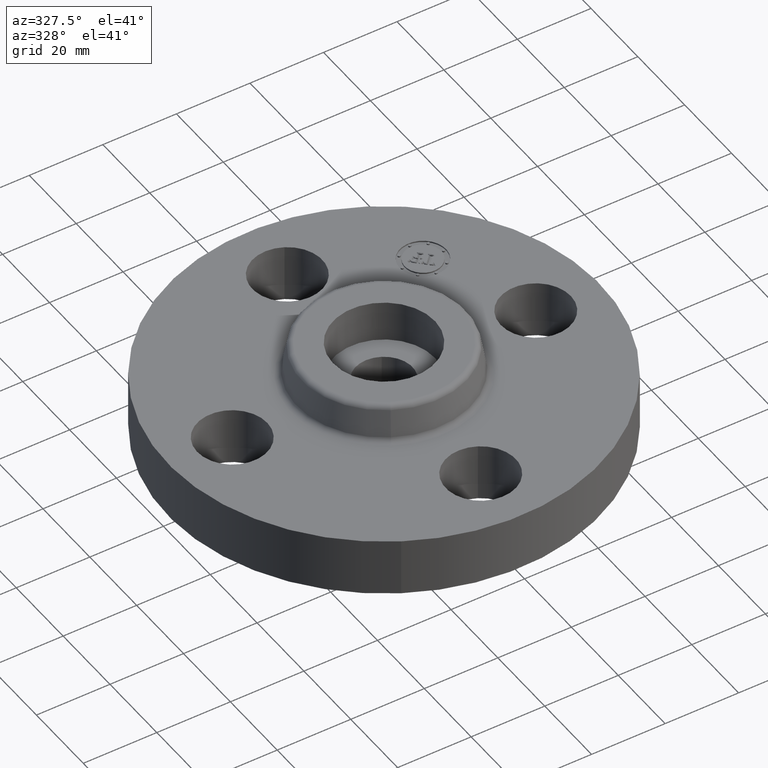
[diagram: clean part render]
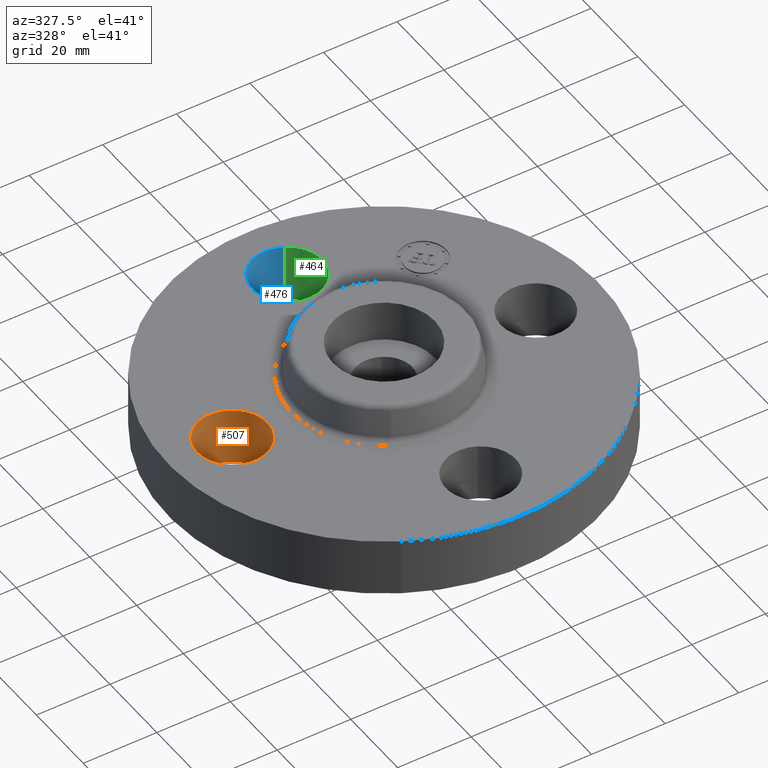
[diagram: same view with three faces highlighted in distinct colors, each labeled with its STEP entity id]
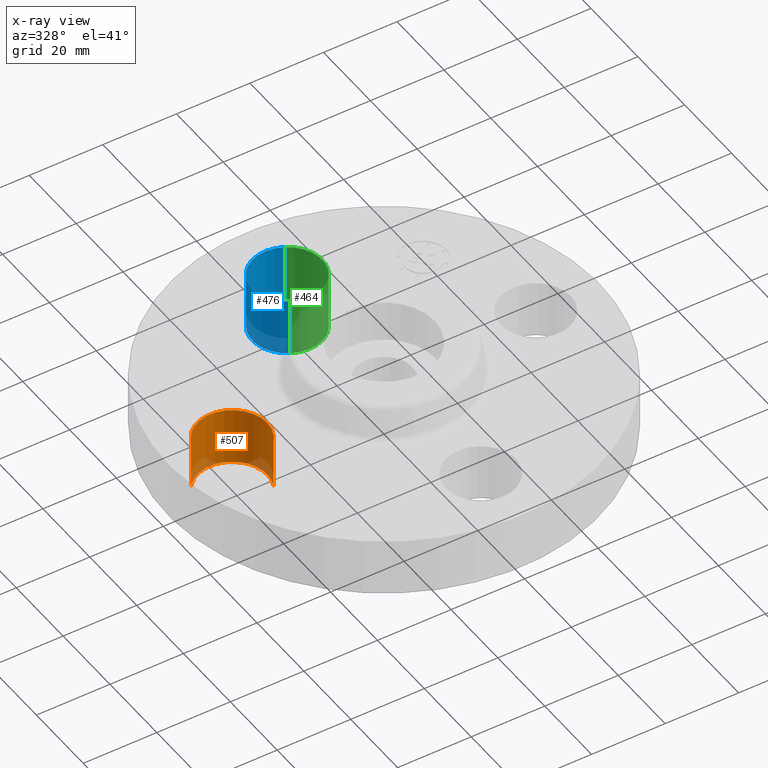
[diagram: x-ray of the same camera — body ghosted, the three highlighted faces saturated]
A machine part, auxiliary view with three faces highlighted in distinct colors.
The next image is the same camera in x-ray (body ghosted, the three faces saturated) — at least one of them is partly hidden behind the body in this view.
Their STEP definitions:

[orange] entity #507 — the highlighted cylindrical surface (partial cylindrical patch) has radius 9.525 mm, axis along (-0, 0, -1).
#194=AXIS2_PLACEMENT_3D('Circle Axis2P3D',#192,#193,$) ;
#480=AXIS2_PLACEMENT_3D('Cylinder Axis2P3D',#477,#478,#479) ;
#498=AXIS2_PLACEMENT_3D('Circle Axis2P3D',#496,#497,$) ;
#187=CARTESIAN_POINT('Vertex',(-1.2959065393,-0.179784576977,0.)) ;
#189=CARTESIAN_POINT('Vertex',(-1.95409346072,0.179784576977,0.)) ;
#192=CARTESIAN_POINT('Axis2P3D Location',(-1.62500000001,-2.09805925913E-016,0.)) ;
#477=CARTESIAN_POINT('Axis2P3D Location',(-1.62500000001,-1.99005104862E-016,0.616062992128)) ;
#482=CARTESIAN_POINT('Line Origine',(-1.95409346072,0.179784576977,0.310000000001)) ;
#486=CARTESIAN_POINT('Vertex',(-1.95409346072,0.179784576977,0.620000000002)) ;
#489=CARTESIAN_POINT('Line Origine',(-1.2959065393,-0.179784576977,0.310000000001)) ;
#493=CARTESIAN_POINT('Vertex',(-1.2959065393,-0.179784576977,0.620000000002)) ;
#496=CARTESIAN_POINT('Axis2P3D Location',(-1.62500000001,-1.99005104862E-016,0.620000000002)) ;
#193=DIRECTION('Axis2P3D Direction',(0.,0.,-0.0393700787402)) ;
#478=DIRECTION('Axis2P3D Direction',(-0.,0.,-0.0393700787402)) ;
#479=DIRECTION('Axis2P3D XDirection',(0.0345504945626,-0.0188750212049,-0.)) ;
#483=DIRECTION('Vector Direction',(0.,0.,-0.0393700787402)) ;
#490=DIRECTION('Vector Direction',(0.,0.,-0.0393700787402)) ;
#497=DIRECTION('Axis2P3D Direction',(-0.,0.,-0.0393700787402)) ;
#484=VECTOR('Line Direction',#483,0.0393700787402) ;
#491=VECTOR('Line Direction',#490,0.0393700787402) ;
#502=ORIENTED_EDGE('',*,*,#488,.F.) ;
#503=ORIENTED_EDGE('',*,*,#196,.T.) ;
#504=ORIENTED_EDGE('',*,*,#495,.T.) ;
#505=ORIENTED_EDGE('',*,*,#500,.F.) ;
#507=ADVANCED_FACE('PartBody',(#506),#481,.F.) ;
#195=CIRCLE('generated circle',#194,0.375000000002) ;
#499=CIRCLE('generated circle',#498,0.375000000002) ;
#481=CYLINDRICAL_SURFACE('generated cylinder',#480,0.375000000002) ;
#196=EDGE_CURVE('',#190,#188,#195,.T.) ;
#488=EDGE_CURVE('',#190,#487,#485,.F.) ;
#495=EDGE_CURVE('',#188,#494,#492,.F.) ;
#500=EDGE_CURVE('',#487,#494,#499,.T.) ;
#501=EDGE_LOOP('',(#502,#503,#504,#505)) ;
#506=FACE_OUTER_BOUND('',#501,.T.) ;
#485=LINE('Line',#482,#484) ;
#492=LINE('Line',#489,#491) ;
#188=VERTEX_POINT('',#187) ;
#190=VERTEX_POINT('',#189) ;
#487=VERTEX_POINT('',#486) ;
#494=VERTEX_POINT('',#493) ;

[blue] entity #476 — the highlighted cylindrical surface (partial cylindrical patch) has radius 9.525 mm, axis along (0, 0, -1).
#203=AXIS2_PLACEMENT_3D('Circle Axis2P3D',#201,#202,$) ;
#437=AXIS2_PLACEMENT_3D('Cylinder Axis2P3D',#434,#435,#436) ;
#467=AXIS2_PLACEMENT_3D('Circle Axis2P3D',#465,#466,$) ;
#201=CARTESIAN_POINT('Axis2P3D Location',(-3.1470888887E-016,1.62500000001,0.)) ;
#205=CARTESIAN_POINT('Vertex',(-0.179784576977,1.2959065393,0.)) ;
#207=CARTESIAN_POINT('Vertex',(0.179784576977,1.95409346072,0.)) ;
#434=CARTESIAN_POINT('Axis2P3D Location',(-2.98507657293E-016,1.62500000001,0.616062992128)) ;
#439=CARTESIAN_POINT('Line Origine',(0.179784576977,1.95409346072,0.310000000001)) ;
#443=CARTESIAN_POINT('Vertex',(0.179784576977,1.95409346072,0.620000000002)) ;
#446=CARTESIAN_POINT('Line Origine',(-0.179784576977,1.2959065393,0.310000000001)) ;
#450=CARTESIAN_POINT('Vertex',(-0.179784576977,1.2959065393,0.620000000002)) ;
#465=CARTESIAN_POINT('Axis2P3D Location',(-2.98507657293E-016,1.62500000001,0.620000000002)) ;
#202=DIRECTION('Axis2P3D Direction',(0.,0.,-0.0393700787402)) ;
#435=DIRECTION('Axis2P3D Direction',(0.,0.,-0.0393700787402)) ;
#436=DIRECTION('Axis2P3D XDirection',(-0.0188750212049,-0.0345504945626,-0.)) ;
#440=DIRECTION('Vector Direction',(0.,0.,-0.0393700787402)) ;
#447=DIRECTION('Vector Direction',(0.,0.,-0.0393700787402)) ;
#466=DIRECTION('Axis2P3D Direction',(0.,0.,-0.0393700787402)) ;
#441=VECTOR('Line Direction',#440,0.0393700787402) ;
#448=VECTOR('Line Direction',#447,0.0393700787402) ;
#471=ORIENTED_EDGE('',*,*,#452,.F.) ;
#472=ORIENTED_EDGE('',*,*,#209,.T.) ;
#473=ORIENTED_EDGE('',*,*,#445,.T.) ;
#474=ORIENTED_EDGE('',*,*,#469,.F.) ;
#476=ADVANCED_FACE('PartBody',(#475),#438,.F.) ;
#204=CIRCLE('generated circle',#203,0.375000000001) ;
#468=CIRCLE('generated circle',#467,0.375000000001) ;
#438=CYLINDRICAL_SURFACE('generated cylinder',#437,0.375000000001) ;
#209=EDGE_CURVE('',#206,#208,#204,.T.) ;
#445=EDGE_CURVE('',#208,#444,#442,.F.) ;
#452=EDGE_CURVE('',#206,#451,#449,.F.) ;
#469=EDGE_CURVE('',#451,#444,#468,.T.) ;
#470=EDGE_LOOP('',(#471,#472,#473,#474)) ;
#475=FACE_OUTER_BOUND('',#470,.T.) ;
#442=LINE('Line',#439,#441) ;
#449=LINE('Line',#446,#448) ;
#206=VERTEX_POINT('',#205) ;
#208=VERTEX_POINT('',#207) ;
#444=VERTEX_POINT('',#443) ;
#451=VERTEX_POINT('',#450) ;

[green] entity #464 — the highlighted cylindrical surface (partial cylindrical patch) has radius 9.525 mm, axis along (0, 0, -1).
#212=AXIS2_PLACEMENT_3D('Circle Axis2P3D',#210,#211,$) ;
#437=AXIS2_PLACEMENT_3D('Cylinder Axis2P3D',#434,#435,#436) ;
#455=AXIS2_PLACEMENT_3D('Circle Axis2P3D',#453,#454,$) ;
#205=CARTESIAN_POINT('Vertex',(-0.179784576977,1.2959065393,0.)) ;
#207=CARTESIAN_POINT('Vertex',(0.179784576977,1.95409346072,0.)) ;
#210=CARTESIAN_POINT('Axis2P3D Location',(-2.44773580232E-016,1.62500000001,0.)) ;
#434=CARTESIAN_POINT('Axis2P3D Location',(-2.98507657293E-016,1.62500000001,0.616062992128)) ;
#439=CARTESIAN_POINT('Line Origine',(0.179784576977,1.95409346072,0.310000000001)) ;
#443=CARTESIAN_POINT('Vertex',(0.179784576977,1.95409346072,0.620000000002)) ;
#446=CARTESIAN_POINT('Line Origine',(-0.179784576977,1.2959065393,0.310000000001)) ;
#450=CARTESIAN_POINT('Vertex',(-0.179784576977,1.2959065393,0.620000000002)) ;
#453=CARTESIAN_POINT('Axis2P3D Location',(-2.98507657293E-016,1.62500000001,0.620000000002)) ;
#211=DIRECTION('Axis2P3D Direction',(0.,0.,-0.0393700787402)) ;
#435=DIRECTION('Axis2P3D Direction',(0.,0.,-0.0393700787402)) ;
#436=DIRECTION('Axis2P3D XDirection',(-0.0188750212049,-0.0345504945626,-0.)) ;
#440=DIRECTION('Vector Direction',(0.,0.,-0.0393700787402)) ;
#447=DIRECTION('Vector Direction',(0.,0.,-0.0393700787402)) ;
#454=DIRECTION('Axis2P3D Direction',(0.,0.,-0.0393700787402)) ;
#441=VECTOR('Line Direction',#440,0.0393700787402) ;
#448=VECTOR('Line Direction',#447,0.0393700787402) ;
#459=ORIENTED_EDGE('',*,*,#445,.F.) ;
#460=ORIENTED_EDGE('',*,*,#214,.T.) ;
#461=ORIENTED_EDGE('',*,*,#452,.T.) ;
#462=ORIENTED_EDGE('',*,*,#457,.F.) ;
#464=ADVANCED_FACE('PartBody',(#463),#438,.F.) ;
#213=CIRCLE('generated circle',#212,0.375000000001) ;
#456=CIRCLE('generated circle',#455,0.375000000001) ;
#438=CYLINDRICAL_SURFACE('generated cylinder',#437,0.375000000001) ;
#214=EDGE_CURVE('',#208,#206,#213,.T.) ;
#445=EDGE_CURVE('',#208,#444,#442,.F.) ;
#452=EDGE_CURVE('',#206,#451,#449,.F.) ;
#457=EDGE_CURVE('',#444,#451,#456,.T.) ;
#458=EDGE_LOOP('',(#459,#460,#461,#462)) ;
#463=FACE_OUTER_BOUND('',#458,.T.) ;
#442=LINE('Line',#439,#441) ;
#449=LINE('Line',#446,#448) ;
#206=VERTEX_POINT('',#205) ;
#208=VERTEX_POINT('',#207) ;
#444=VERTEX_POINT('',#443) ;
#451=VERTEX_POINT('',#450) ;